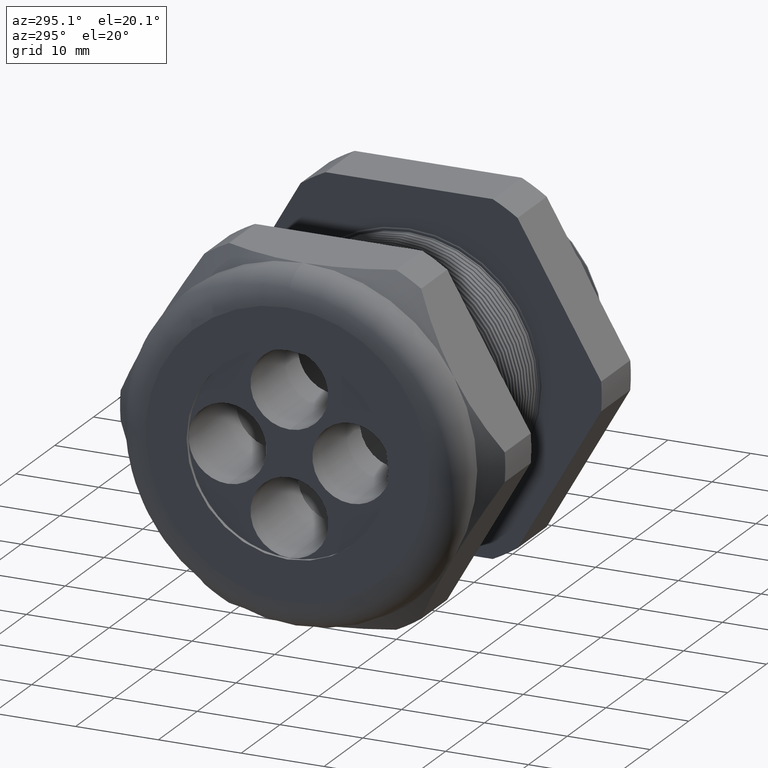
[diagram: clean part render]
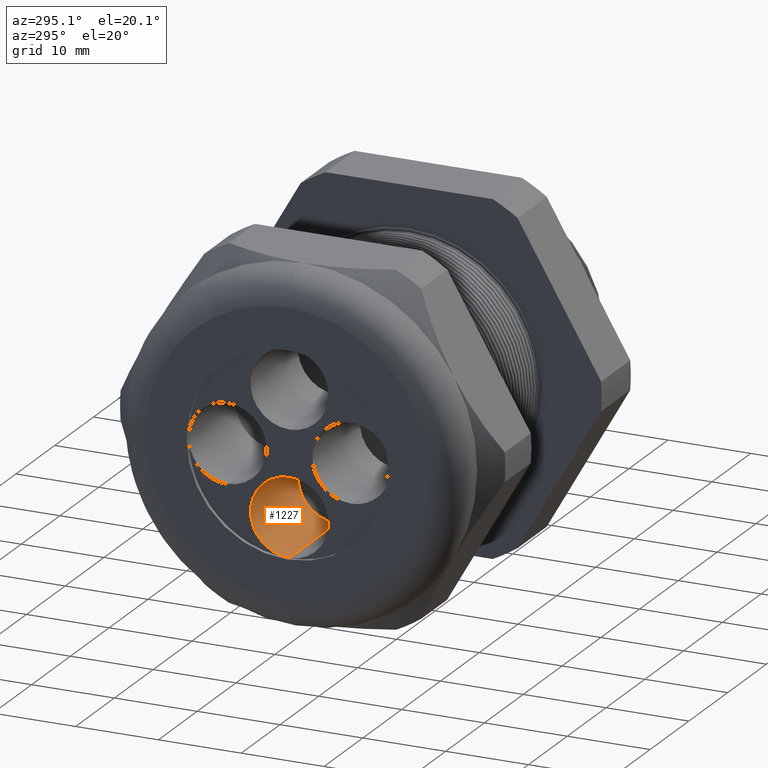
[diagram: same view with one face highlighted and labeled with its STEP entity id]
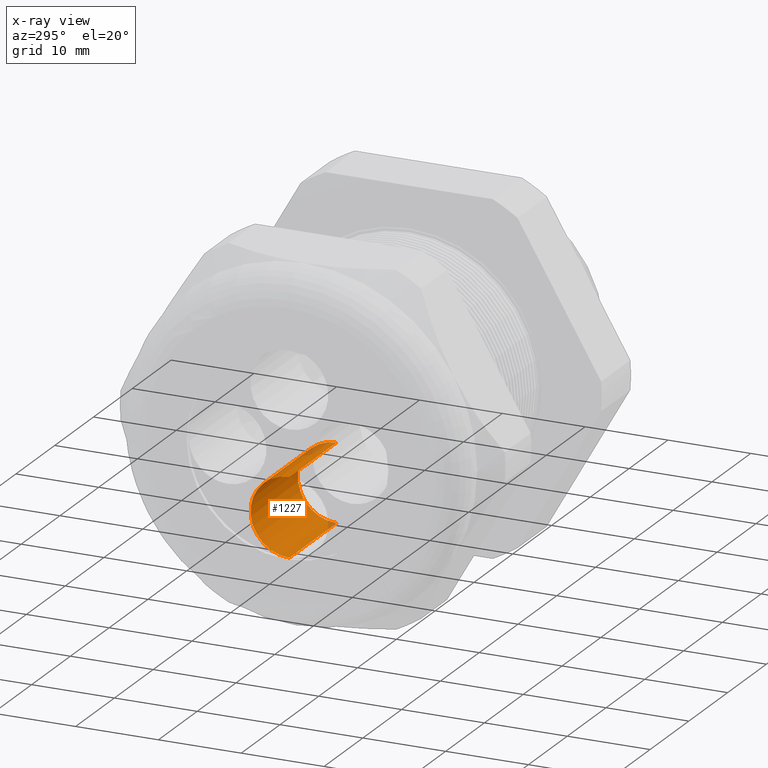
[diagram: x-ray of the same camera — body ghosted, the highlighted face saturated]
A machine part, auxiliary view. The second image highlights one B-rep face of the part: STEP entity #1227.
The next image is the same camera in x-ray: the body ghosted, the highlighted face saturated — about 4% of this face is hidden behind the body in this view.
In plain terms, the highlighted cylindrical surface (partial cylindrical patch) has radius 4.699 mm, axis along (-1, 0, 0).
Its self-contained STEP definition (entity closure, byte-faithful):
#1049 = VERTEX_POINT ( 'NONE', #3006 ) ;
#1051 = VERTEX_POINT ( 'NONE', #3004 ) ;
#1053 = EDGE_CURVE ( 'NONE', #1049, #1054, #3003, .T. ) ;
#1054 = VERTEX_POINT ( 'NONE', #2999 ) ;
#1077 = EDGE_CURVE ( 'NONE', #1051, #1080, #3016, .T. ) ;
#1080 = VERTEX_POINT ( 'NONE', #3070 ) ;
#1143 = EDGE_CURVE ( 'NONE', #1051, #1049, #3156, .T. ) ;
#1165 = ORIENTED_EDGE ( 'NONE', *, *, #1143, .F. ) ;
#1166 = ORIENTED_EDGE ( 'NONE', *, *, #1053, .F. ) ;
#1167 = ORIENTED_EDGE ( 'NONE', *, *, #1077, .T. ) ;
#1168 = ORIENTED_EDGE ( 'NONE', *, *, #1190, .T. ) ;
#1190 = EDGE_CURVE ( 'NONE', #1080, #1054, #3236, .T. ) ;
#1227 = ADVANCED_FACE ( 'NONE', ( #3291 ), #3288, .F. ) ;
#1239 = EDGE_LOOP ( 'NONE', ( #1166, #1165, #1167, #1168 ) ) ;
#2999 = CARTESIAN_POINT ( 'NONE',  ( -1.819999999999999400, 2.265596578422603700E-017, -0.4792599999999998000 ) ) ;
#3000 = DIRECTION ( 'NONE',  ( -1.000000000000000000, 0.0000000000000000000, 0.0000000000000000000 ) ) ;
#3001 = VECTOR ( 'NONE', #3000, 39.37007874015748100 ) ;
#3002 = CARTESIAN_POINT ( 'NONE',  ( 0.1200000000000000900, 2.265596578422603700E-017, -0.4792599999999998000 ) ) ;
#3003 = LINE ( 'NONE', #3002, #3001 ) ;
#3004 = CARTESIAN_POINT ( 'NONE',  ( -1.339999999999999400, 0.0000000000000000000, -0.1092599999999997900 ) ) ;
#3006 = CARTESIAN_POINT ( 'NONE',  ( -1.339999999999999400, 2.265596578422603700E-017, -0.4792599999999998000 ) ) ;
#3013 = DIRECTION ( 'NONE',  ( -1.000000000000000000, 0.0000000000000000000, 0.0000000000000000000 ) ) ;
#3014 = VECTOR ( 'NONE', #3013, 39.37007874015748100 ) ;
#3015 = CARTESIAN_POINT ( 'NONE',  ( 0.1200000000000000900, 0.0000000000000000000, -0.1092599999999997900 ) ) ;
#3016 = LINE ( 'NONE', #3015, #3014 ) ;
#3070 = CARTESIAN_POINT ( 'NONE',  ( -1.819999999999999400, 0.0000000000000000000, -0.1092599999999997900 ) ) ;
#3151 = DIRECTION ( 'NONE',  ( 0.0000000000000000000, 0.0000000000000000000, 1.000000000000000000 ) ) ;
#3152 = DIRECTION ( 'NONE',  ( -1.000000000000000000, 0.0000000000000000000, 0.0000000000000000000 ) ) ;
#3153 = CARTESIAN_POINT ( 'NONE',  ( -1.339999999999999400, 0.0000000000000000000, -0.2942599999999998000 ) ) ;
#3155 = AXIS2_PLACEMENT_3D ( 'NONE', #3153, #3152, #3151 ) ;
#3156 = CIRCLE ( 'NONE', #3155, 0.1850000000000000000 ) ;
#3232 = DIRECTION ( 'NONE',  ( 0.0000000000000000000, 0.0000000000000000000, 1.000000000000000000 ) ) ;
#3233 = DIRECTION ( 'NONE',  ( -1.000000000000000000, 0.0000000000000000000, 0.0000000000000000000 ) ) ;
#3234 = CARTESIAN_POINT ( 'NONE',  ( -1.819999999999999400, 0.0000000000000000000, -0.2942599999999998000 ) ) ;
#3235 = AXIS2_PLACEMENT_3D ( 'NONE', #3234, #3233, #3232 ) ;
#3236 = CIRCLE ( 'NONE', #3235, 0.1850000000000000000 ) ;
#3285 = DIRECTION ( 'NONE',  ( 0.0000000000000000000, 0.0000000000000000000, 1.000000000000000000 ) ) ;
#3286 = DIRECTION ( 'NONE',  ( -1.000000000000000000, 0.0000000000000000000, 0.0000000000000000000 ) ) ;
#3287 = AXIS2_PLACEMENT_3D ( 'NONE', #3290, #3286, #3285 ) ;
#3288 = CYLINDRICAL_SURFACE ( 'NONE', #3287, 0.1850000000000000000 ) ;
#3290 = CARTESIAN_POINT ( 'NONE',  ( 0.1200000000000000900, 0.0000000000000000000, -0.2942599999999998000 ) ) ;
#3291 = FACE_OUTER_BOUND ( 'NONE', #1239, .T. ) ;